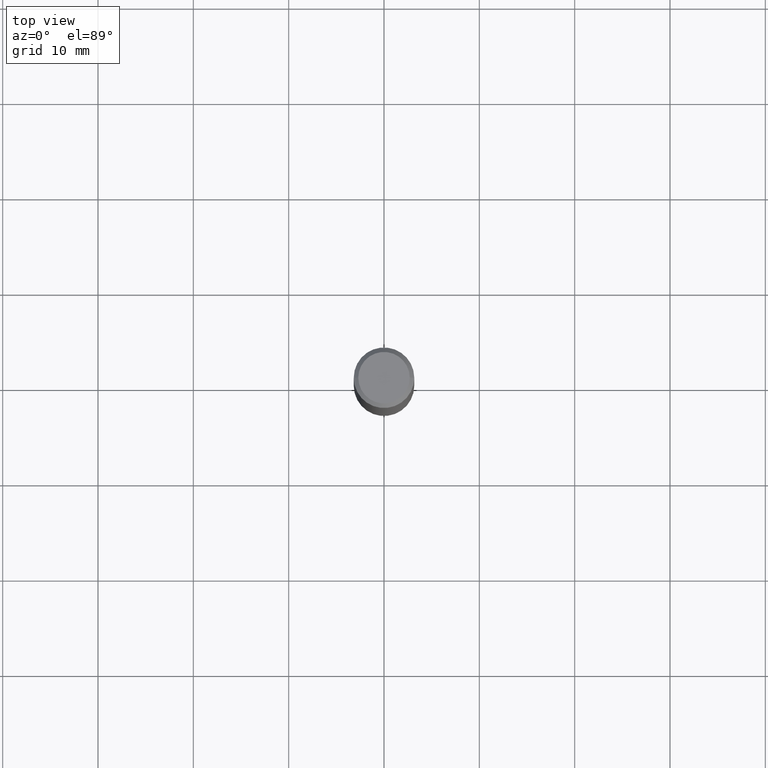
[diagram: clean part render]
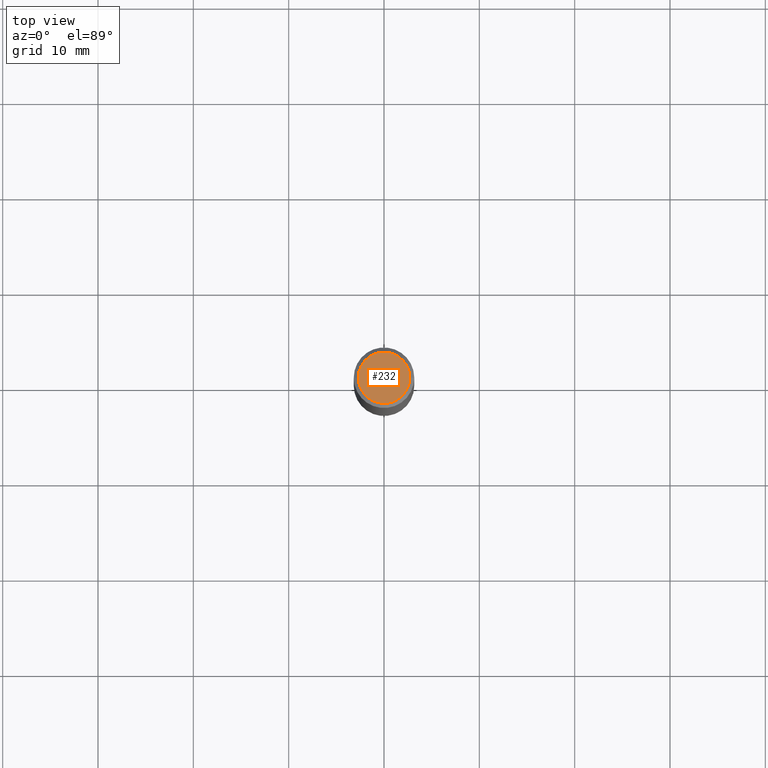
[diagram: same view with one face highlighted and labeled with its STEP entity id]
A machine part, top view. The second image highlights one B-rep face of the part: STEP entity #232.
In plain terms, the highlighted planar face has unit normal (0, -0, -1).
Its self-contained STEP definition (entity closure, byte-faithful):
#7 = DIRECTION ( 'NONE',  ( -2.445468806185136597E-29, 3.491481338843145583E-15, 1.000000000000000000 ) ) ;
#11 = CIRCLE ( 'NONE', #84, 0.1062499999999999972 ) ;
#46 = DIRECTION ( 'NONE',  ( -2.445468806185136597E-29, 3.491481338843145583E-15, 1.000000000000000000 ) ) ;
#80 = DIRECTION ( 'NONE',  ( 2.438088387897960049E-29, -3.491481338843145188E-15, -1.000000000000000000 ) ) ;
#84 = AXIS2_PLACEMENT_3D ( 'NONE', #338, #46, #113 ) ;
#113 = DIRECTION ( 'NONE',  ( 1.000000000000000000, -6.982962677686266711E-15, 4.875930095424100059E-29 ) ) ;
#116 = ORIENTED_EDGE ( 'NONE', *, *, #178, .T. ) ;
#157 = ORIENTED_EDGE ( 'NONE', *, *, #231, .T. ) ;
#165 = VERTEX_POINT ( 'NONE', #256 ) ;
#178 = EDGE_CURVE ( 'NONE', #365, #165, #389, .T. ) ;
#181 = FACE_OUTER_BOUND ( 'NONE', #279, .T. ) ;
#221 = CARTESIAN_POINT ( 'NONE',  ( -7.955031918821654702E-47, 1.135767727816384474E-32, 3.252968060235159383E-18 ) ) ;
#231 = EDGE_CURVE ( 'NONE', #165, #365, #11, .T. ) ;
#232 = ADVANCED_FACE ( 'NONE', ( #181 ), #425, .F. ) ;
#247 = CARTESIAN_POINT ( 'NONE',  ( -0.1062499999999999972, 7.746724220558198188E-16, 6.505936120465015526E-18 ) ) ;
#256 = CARTESIAN_POINT ( 'NONE',  ( 0.1062499999999999972, -8.259777185439879685E-16, 6.505936120475800733E-18 ) ) ;
#257 = AXIS2_PLACEMENT_3D ( 'NONE', #378, #7, #455 ) ;
#270 = DIRECTION ( 'NONE',  ( -1.000000000000000000, 6.982962677686265922E-15, -4.876176775795935793E-29 ) ) ;
#279 = EDGE_LOOP ( 'NONE', ( #116, #157 ) ) ;
#338 = CARTESIAN_POINT ( 'NONE',  ( -1.591006383764330940E-46, 2.271535455632768948E-32, 6.505936120470318766E-18 ) ) ;
#365 = VERTEX_POINT ( 'NONE', #247 ) ;
#378 = CARTESIAN_POINT ( 'NONE',  ( -1.591006383764330940E-46, 2.271535455632768948E-32, 6.505936120470318766E-18 ) ) ;
#389 = CIRCLE ( 'NONE', #257, 0.1062499999999999972 ) ;
#391 = AXIS2_PLACEMENT_3D ( 'NONE', #221, #80, #270 ) ;
#425 = PLANE ( 'NONE',  #391 ) ;
#455 = DIRECTION ( 'NONE',  ( 1.000000000000000000, -6.982962677686266711E-15, 4.875930095424100059E-29 ) ) ;